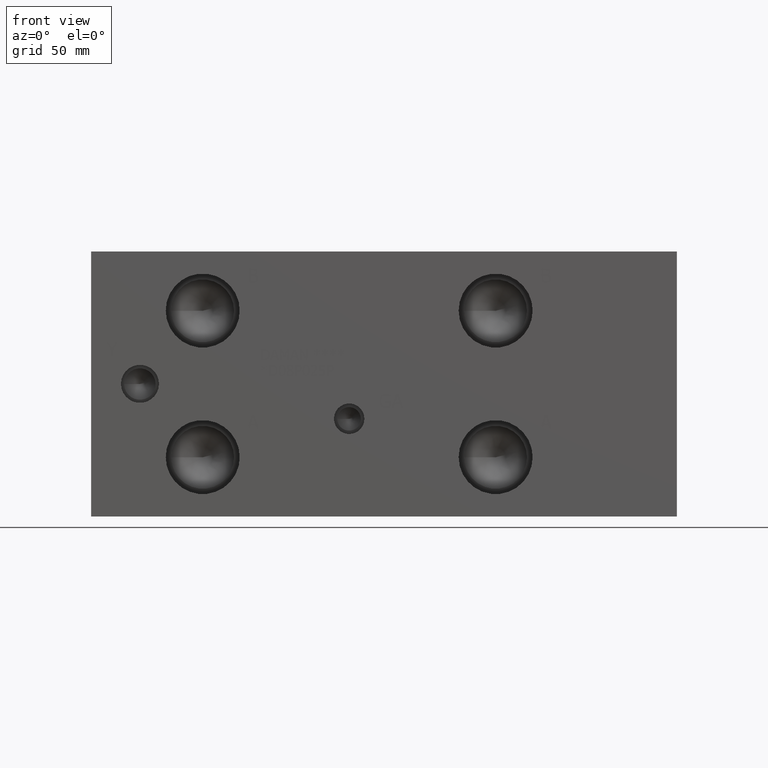
[diagram: clean part render]
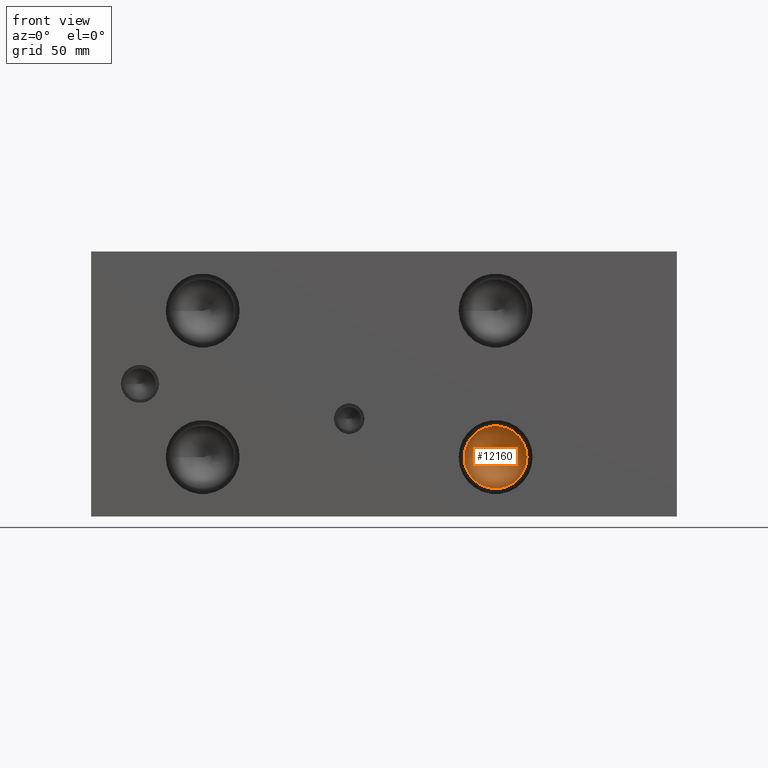
[diagram: same view with one face highlighted and labeled with its STEP entity id]
A machine part, front view. The second image highlights one B-rep face of the part: STEP entity #12160.
In plain terms, the highlighted conical surface has half-angle 60 deg.
Its self-contained STEP definition (entity closure, byte-faithful):
#99=CONICAL_SURFACE('',#12742,7.14375,1.0471975511966);
#223=CIRCLE('',#12743,14.2875);
#224=CIRCLE('',#12744,14.2875);
#1499=FACE_OUTER_BOUND('',#2202,.T.);
#2202=EDGE_LOOP('',(#10308,#10309,#10310,#10311));
#3382=LINE('',#20582,#4502);
#4502=VECTOR('',#14990,7.14375);
#5563=VERTEX_POINT('',#20578);
#5564=VERTEX_POINT('',#20579);
#5565=VERTEX_POINT('',#20581);
#7201=EDGE_CURVE('',#5563,#5564,#223,.T.);
#7202=EDGE_CURVE('',#5564,#5565,#3382,.T.);
#7203=EDGE_CURVE('',#5564,#5563,#224,.T.);
#10308=ORIENTED_EDGE('',*,*,#7201,.T.);
#10309=ORIENTED_EDGE('',*,*,#7202,.T.);
#10310=ORIENTED_EDGE('',*,*,#7202,.F.);
#10311=ORIENTED_EDGE('',*,*,#7203,.T.);
#12160=ADVANCED_FACE('',(#1499),#99,.F.);
#12742=AXIS2_PLACEMENT_3D('',#20577,#14986,#14987);
#12743=AXIS2_PLACEMENT_3D('',#20580,#14988,#14989);
#12744=AXIS2_PLACEMENT_3D('',#20583,#14991,#14992);
#14986=DIRECTION('center_axis',(0.,-1.,0.));
#14987=DIRECTION('ref_axis',(1.,0.,0.));
#14988=DIRECTION('center_axis',(0.,-1.,0.));
#14989=DIRECTION('ref_axis',(1.,0.,0.));
#14990=DIRECTION('',(0.866025403784438,0.5,1.06057523872491E-16));
#14991=DIRECTION('center_axis',(0.,-1.,0.));
#14992=DIRECTION('ref_axis',(1.,0.,0.));
#20577=CARTESIAN_POINT('Origin',(184.15,23.9485359855234,26.9748));
#20578=CARTESIAN_POINT('',(198.4375,19.82409,26.9748));
#20579=CARTESIAN_POINT('',(169.8625,19.82409,26.9748));
#20580=CARTESIAN_POINT('Origin',(184.15,19.82409,26.9748));
#20581=CARTESIAN_POINT('',(184.15,28.0729819710468,26.9748));
#20582=CARTESIAN_POINT('',(177.00625,23.9485359855234,26.9748));
#20583=CARTESIAN_POINT('Origin',(184.15,19.82409,26.9748));